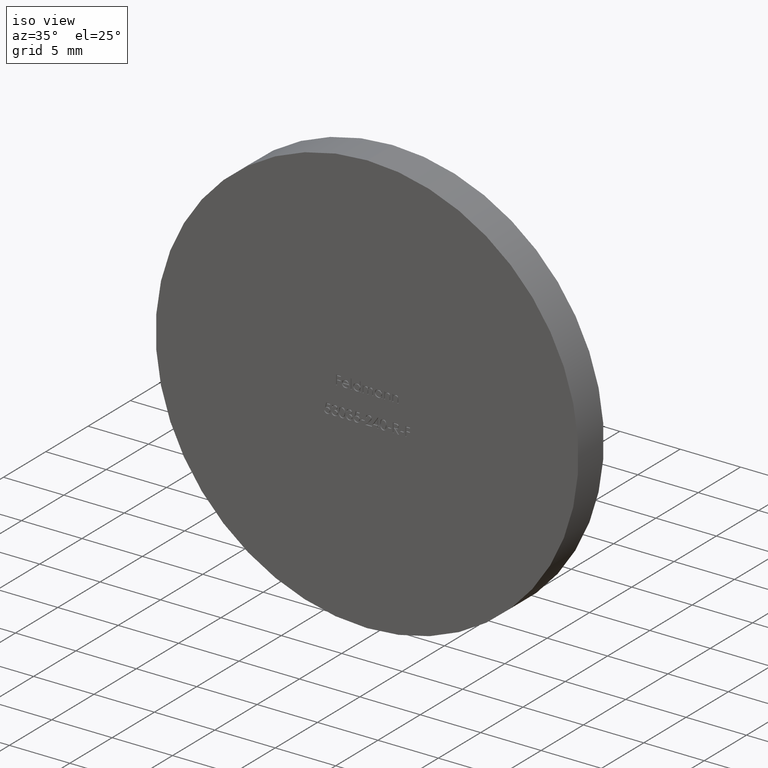
[diagram: clean part render]
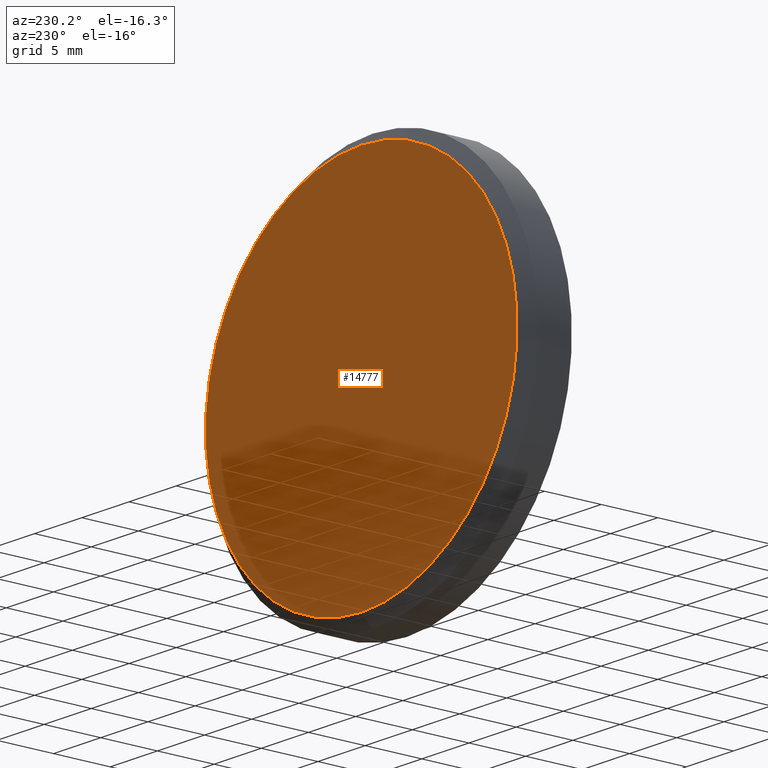
[diagram: tour spotlight — one face highlighted and labeled with its STEP entity id]
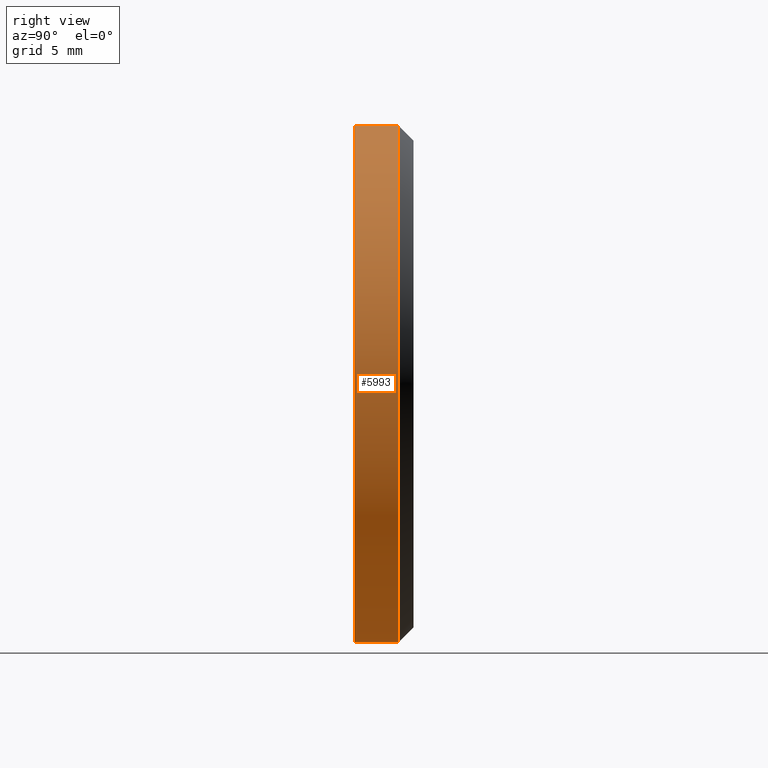
[diagram: tour spotlight — one face highlighted and labeled with its STEP entity id]
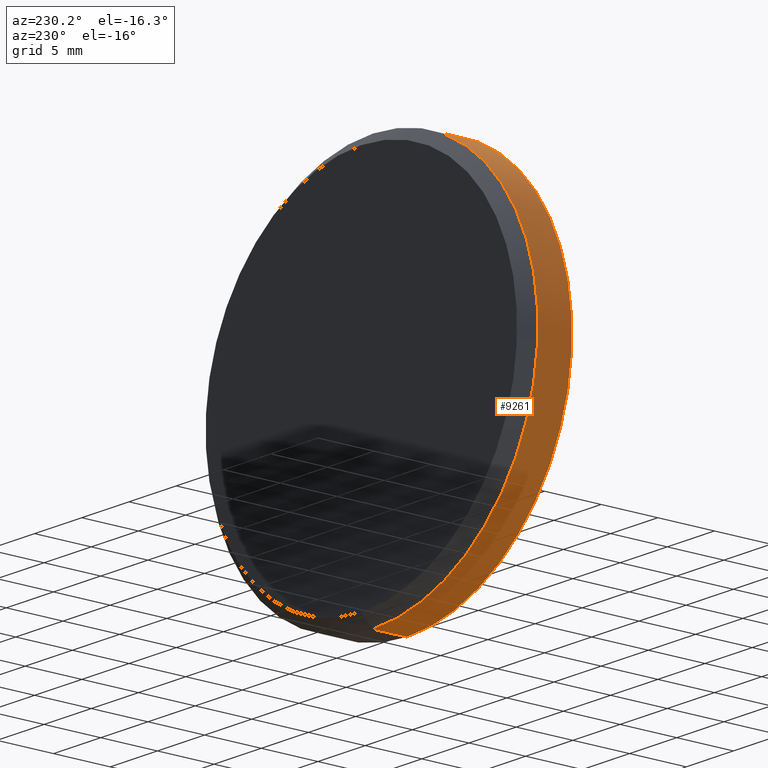
[diagram: tour spotlight — one face highlighted and labeled with its STEP entity id]
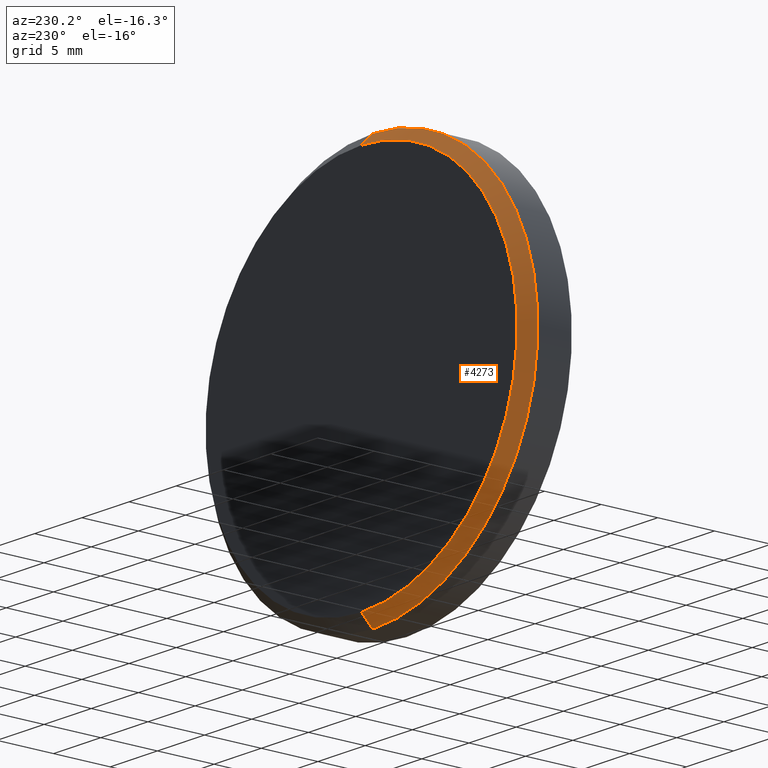
[diagram: tour spotlight — one face highlighted and labeled with its STEP entity id]
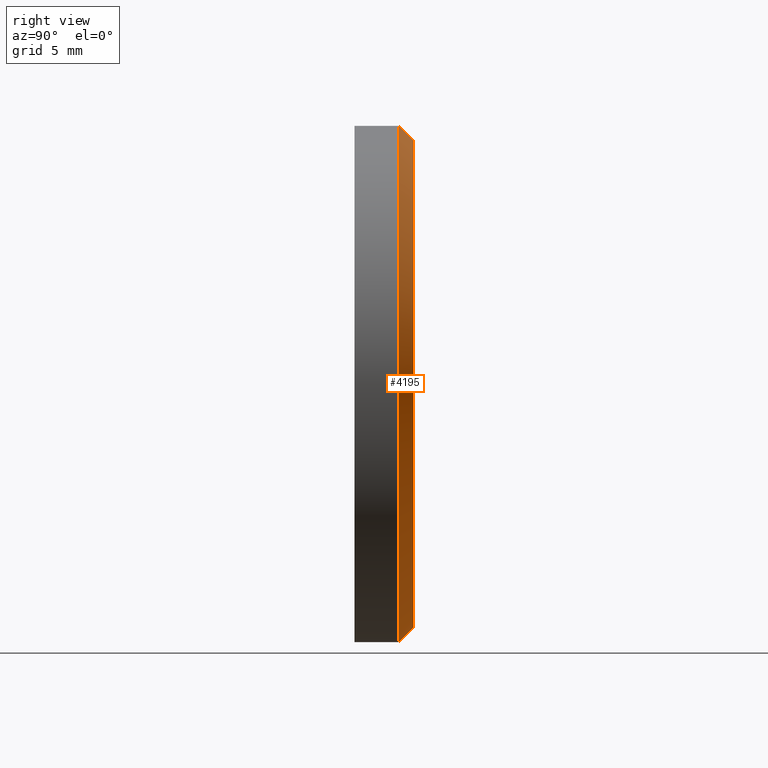
[diagram: tour spotlight — one face highlighted and labeled with its STEP entity id]
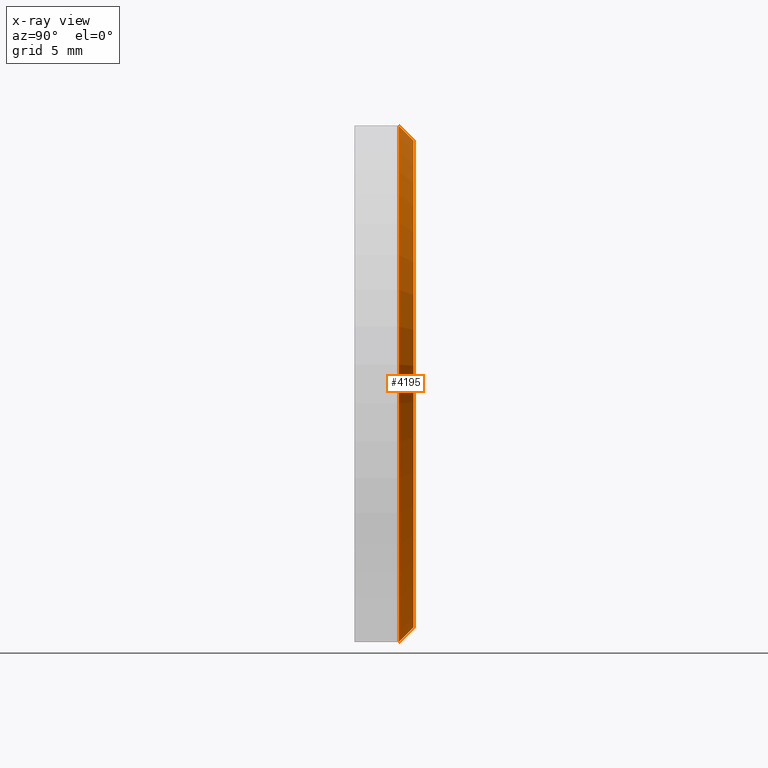
[diagram: x-ray of the same camera — body ghosted, this tour face saturated]
A machine part: a face-by-face anatomy tour. The part has 279 B-rep faces; the first image is the clean iso view, then the 5 largest visible faces are spotlighted one at a time (largest first), each with its STEP entity span.

Face 1 — auxiliary view, entity #14777. In plain terms, the highlighted planar face has unit normal (0, 1, 0).
Definition (entity closure, byte-faithful):
#495 = EDGE_CURVE ( 'NONE', #5404, #735, #3005, .T. ) ;
#735 = VERTEX_POINT ( 'NONE', #1811 ) ;
#972 = ORIENTED_EDGE ( 'NONE', *, *, #495, .T. ) ;
#1275 = DIRECTION ( 'NONE',  ( 0.000000000000000000, 0.000000000000000000, 1.000000000000000000 ) ) ;
#1706 = DIRECTION ( 'NONE',  ( 0.000000000000000000, 1.000000000000000000, 0.000000000000000000 ) ) ;
#1811 = CARTESIAN_POINT ( 'NONE',  ( 0.000000000000000000, 2.000000000000000000, -16.50000000000000000 ) ) ;
#2479 = DIRECTION ( 'NONE',  ( 0.000000000000000000, 1.000000000000000000, 0.000000000000000000 ) ) ;
#2843 = CARTESIAN_POINT ( 'NONE',  ( 0.000000000000000000, 2.000000000000000000, 0.000000000000000000 ) ) ;
#3005 = CIRCLE ( 'NONE', #11826, 16.50000000000000000 ) ;
#4680 = CARTESIAN_POINT ( 'NONE',  ( 2.081899558550500674E-15, 2.000000000000000000, 16.50000000000000000 ) ) ;
#4746 = CARTESIAN_POINT ( 'NONE',  ( 0.000000000000000000, 2.000000000000000000, 0.000000000000000000 ) ) ;
#5276 = PLANE ( 'NONE',  #13328 ) ;
#5404 = VERTEX_POINT ( 'NONE', #4680 ) ;
#6340 = DIRECTION ( 'NONE',  ( 0.000000000000000000, -0.000000000000000000, 1.000000000000000000 ) ) ;
#6895 = ORIENTED_EDGE ( 'NONE', *, *, #8542, .T. ) ;
#8542 = EDGE_CURVE ( 'NONE', #735, #5404, #11067, .T. ) ;
#10059 = FACE_OUTER_BOUND ( 'NONE', #15172, .T. ) ;
#10814 = DIRECTION ( 'NONE',  ( 0.000000000000000000, 1.000000000000000000, 0.000000000000000000 ) ) ;
#11067 = CIRCLE ( 'NONE', #14968, 16.50000000000000000 ) ;
#11826 = AXIS2_PLACEMENT_3D ( 'NONE', #4746, #10814, #12008 ) ;
#11964 = CARTESIAN_POINT ( 'NONE',  ( 0.000000000000000000, 2.000000000000000000, 0.000000000000000000 ) ) ;
#12008 = DIRECTION ( 'NONE',  ( 0.000000000000000000, 0.000000000000000000, 1.000000000000000000 ) ) ;
#13328 = AXIS2_PLACEMENT_3D ( 'NONE', #2843, #1706, #6340 ) ;
#14777 = ADVANCED_FACE ( 'NONE', ( #10059 ), #5276, .T. ) ;
#14968 = AXIS2_PLACEMENT_3D ( 'NONE', #11964, #2479, #1275 ) ;
#15172 = EDGE_LOOP ( 'NONE', ( #6895, #972 ) ) ;

Face 2 — right view, entity #5993. In plain terms, the highlighted cylindrical surface (partial cylindrical patch) has radius 17.5 mm, axis along (-0, -1, -0).
Definition (entity closure, byte-faithful):
#82 = AXIS2_PLACEMENT_3D ( 'NONE', #1902, #11392, #4336 ) ;
#509 = CARTESIAN_POINT ( 'NONE',  ( 0.000000000000000000, 2.000000000000000000, 0.000000000000000000 ) ) ;
#630 = EDGE_CURVE ( 'NONE', #2962, #12953, #15239, .T. ) ;
#1118 = ORIENTED_EDGE ( 'NONE', *, *, #10321, .F. ) ;
#1902 = CARTESIAN_POINT ( 'NONE',  ( 0.000000000000000000, -2.000000000000000000, 0.000000000000000000 ) ) ;
#2425 = VERTEX_POINT ( 'NONE', #7342 ) ;
#2678 = EDGE_LOOP ( 'NONE', ( #9169, #14987, #2803, #1118 ) ) ;
#2803 = ORIENTED_EDGE ( 'NONE', *, *, #8751, .T. ) ;
#2858 = VECTOR ( 'NONE', #8539, 1000.000000000000000 ) ;
#2962 = VERTEX_POINT ( 'NONE', #4221 ) ;
#3249 = CIRCLE ( 'NONE', #82, 17.50000000000000355 ) ;
#4221 = CARTESIAN_POINT ( 'NONE',  ( 2.143131898507868643E-15, 0.9999999999999922284, 17.50000000000000355 ) ) ;
#4241 = CARTESIAN_POINT ( 'NONE',  ( 0.000000000000000000, 0.9999999999999922284, 0.000000000000000000 ) ) ;
#4300 = DIRECTION ( 'NONE',  ( 0.000000000000000000, -1.000000000000000000, 0.000000000000000000 ) ) ;
#4336 = DIRECTION ( 'NONE',  ( 0.000000000000000000, 0.000000000000000000, 1.000000000000000000 ) ) ;
#4945 = AXIS2_PLACEMENT_3D ( 'NONE', #509, #5227, #11198 ) ;
#4947 = CARTESIAN_POINT ( 'NONE',  ( 0.000000000000000000, 2.000000000000000000, -17.50000000000000355 ) ) ;
#5227 = DIRECTION ( 'NONE',  ( -0.000000000000000000, -1.000000000000000000, -0.000000000000000000 ) ) ;
#5407 = CIRCLE ( 'NONE', #10147, 17.50000000000000355 ) ;
#5454 = VERTEX_POINT ( 'NONE', #5928 ) ;
#5928 = CARTESIAN_POINT ( 'NONE',  ( 0.000000000000000000, -2.000000000000000000, -17.50000000000000355 ) ) ;
#5993 = ADVANCED_FACE ( 'NONE', ( #7220 ), #14237, .T. ) ;
#7220 = FACE_OUTER_BOUND ( 'NONE', #2678, .T. ) ;
#7342 = CARTESIAN_POINT ( 'NONE',  ( 0.000000000000000000, 0.9999999999999922284, -17.50000000000000355 ) ) ;
#8539 = DIRECTION ( 'NONE',  ( -0.000000000000000000, -1.000000000000000000, -0.000000000000000000 ) ) ;
#8751 = EDGE_CURVE ( 'NONE', #12953, #5454, #3249, .T. ) ;
#8766 = DIRECTION ( 'NONE',  ( -0.000000000000000000, -1.000000000000000000, -0.000000000000000000 ) ) ;
#9169 = ORIENTED_EDGE ( 'NONE', *, *, #14526, .T. ) ;
#9188 = LINE ( 'NONE', #4947, #2858 ) ;
#9363 = CARTESIAN_POINT ( 'NONE',  ( 2.143131898507868643E-15, -2.000000000000000000, 17.50000000000000355 ) ) ;
#9708 = VECTOR ( 'NONE', #8766, 1000.000000000000000 ) ;
#10147 = AXIS2_PLACEMENT_3D ( 'NONE', #4241, #4300, #13632 ) ;
#10321 = EDGE_CURVE ( 'NONE', #2425, #5454, #9188, .T. ) ;
#11198 = DIRECTION ( 'NONE',  ( 0.000000000000000000, 0.000000000000000000, -1.000000000000000000 ) ) ;
#11392 = DIRECTION ( 'NONE',  ( 0.000000000000000000, 1.000000000000000000, 0.000000000000000000 ) ) ;
#12378 = CARTESIAN_POINT ( 'NONE',  ( 2.143131898507868643E-15, 2.000000000000000000, 17.50000000000000355 ) ) ;
#12953 = VERTEX_POINT ( 'NONE', #9363 ) ;
#13632 = DIRECTION ( 'NONE',  ( 0.000000000000000000, 0.000000000000000000, 1.000000000000000000 ) ) ;
#14237 = CYLINDRICAL_SURFACE ( 'NONE', #4945, 17.50000000000000355 ) ;
#14526 = EDGE_CURVE ( 'NONE', #2425, #2962, #5407, .T. ) ;
#14987 = ORIENTED_EDGE ( 'NONE', *, *, #630, .T. ) ;
#15239 = LINE ( 'NONE', #12378, #9708 ) ;

Face 3 — auxiliary view, entity #9261. In plain terms, the highlighted cylindrical surface (partial cylindrical patch) has radius 17.5 mm, axis along (-0, -1, -0).
Definition (entity closure, byte-faithful):
#630 = EDGE_CURVE ( 'NONE', #2962, #12953, #15239, .T. ) ;
#648 = CARTESIAN_POINT ( 'NONE',  ( 0.000000000000000000, 2.000000000000000000, 0.000000000000000000 ) ) ;
#678 = AXIS2_PLACEMENT_3D ( 'NONE', #648, #13805, #6731 ) ;
#1395 = CARTESIAN_POINT ( 'NONE',  ( 0.000000000000000000, 0.9999999999999922284, 0.000000000000000000 ) ) ;
#2425 = VERTEX_POINT ( 'NONE', #7342 ) ;
#2858 = VECTOR ( 'NONE', #8539, 1000.000000000000000 ) ;
#2879 = AXIS2_PLACEMENT_3D ( 'NONE', #3625, #4885, #11873 ) ;
#2885 = CYLINDRICAL_SURFACE ( 'NONE', #678, 17.50000000000000355 ) ;
#2962 = VERTEX_POINT ( 'NONE', #4221 ) ;
#3514 = ORIENTED_EDGE ( 'NONE', *, *, #630, .F. ) ;
#3625 = CARTESIAN_POINT ( 'NONE',  ( 0.000000000000000000, -2.000000000000000000, 0.000000000000000000 ) ) ;
#4107 = CIRCLE ( 'NONE', #2879, 17.50000000000000355 ) ;
#4148 = ORIENTED_EDGE ( 'NONE', *, *, #10321, .T. ) ;
#4221 = CARTESIAN_POINT ( 'NONE',  ( 2.143131898507868643E-15, 0.9999999999999922284, 17.50000000000000355 ) ) ;
#4885 = DIRECTION ( 'NONE',  ( 0.000000000000000000, 1.000000000000000000, 0.000000000000000000 ) ) ;
#4947 = CARTESIAN_POINT ( 'NONE',  ( 0.000000000000000000, 2.000000000000000000, -17.50000000000000355 ) ) ;
#5014 = DIRECTION ( 'NONE',  ( 0.000000000000000000, -1.000000000000000000, 0.000000000000000000 ) ) ;
#5454 = VERTEX_POINT ( 'NONE', #5928 ) ;
#5928 = CARTESIAN_POINT ( 'NONE',  ( 0.000000000000000000, -2.000000000000000000, -17.50000000000000355 ) ) ;
#6731 = DIRECTION ( 'NONE',  ( 0.000000000000000000, 0.000000000000000000, -1.000000000000000000 ) ) ;
#7342 = CARTESIAN_POINT ( 'NONE',  ( 0.000000000000000000, 0.9999999999999922284, -17.50000000000000355 ) ) ;
#7384 = CIRCLE ( 'NONE', #9734, 17.50000000000000355 ) ;
#8168 = EDGE_LOOP ( 'NONE', ( #3514, #9655, #4148, #8789 ) ) ;
#8539 = DIRECTION ( 'NONE',  ( -0.000000000000000000, -1.000000000000000000, -0.000000000000000000 ) ) ;
#8570 = EDGE_CURVE ( 'NONE', #2962, #2425, #7384, .T. ) ;
#8766 = DIRECTION ( 'NONE',  ( -0.000000000000000000, -1.000000000000000000, -0.000000000000000000 ) ) ;
#8789 = ORIENTED_EDGE ( 'NONE', *, *, #13018, .T. ) ;
#9188 = LINE ( 'NONE', #4947, #2858 ) ;
#9261 = ADVANCED_FACE ( 'NONE', ( #9766 ), #2885, .T. ) ;
#9363 = CARTESIAN_POINT ( 'NONE',  ( 2.143131898507868643E-15, -2.000000000000000000, 17.50000000000000355 ) ) ;
#9655 = ORIENTED_EDGE ( 'NONE', *, *, #8570, .T. ) ;
#9708 = VECTOR ( 'NONE', #8766, 1000.000000000000000 ) ;
#9734 = AXIS2_PLACEMENT_3D ( 'NONE', #1395, #5014, #12012 ) ;
#9766 = FACE_OUTER_BOUND ( 'NONE', #8168, .T. ) ;
#10321 = EDGE_CURVE ( 'NONE', #2425, #5454, #9188, .T. ) ;
#11873 = DIRECTION ( 'NONE',  ( 0.000000000000000000, 0.000000000000000000, 1.000000000000000000 ) ) ;
#12012 = DIRECTION ( 'NONE',  ( 0.000000000000000000, 0.000000000000000000, 1.000000000000000000 ) ) ;
#12378 = CARTESIAN_POINT ( 'NONE',  ( 2.143131898507868643E-15, 2.000000000000000000, 17.50000000000000355 ) ) ;
#12953 = VERTEX_POINT ( 'NONE', #9363 ) ;
#13018 = EDGE_CURVE ( 'NONE', #5454, #12953, #4107, .T. ) ;
#13805 = DIRECTION ( 'NONE',  ( -0.000000000000000000, -1.000000000000000000, -0.000000000000000000 ) ) ;
#15239 = LINE ( 'NONE', #12378, #9708 ) ;

Face 4 — auxiliary view, entity #4273. In plain terms, the highlighted conical surface has half-angle 45 deg.
Definition (entity closure, byte-faithful):
#214 = VECTOR ( 'NONE', #1566, 1000.000000000000000 ) ;
#543 = CONICAL_SURFACE ( 'NONE', #6943, 16.50000000000000000, 0.7853981633974466137 ) ;
#735 = VERTEX_POINT ( 'NONE', #1811 ) ;
#1160 = ORIENTED_EDGE ( 'NONE', *, *, #8570, .F. ) ;
#1275 = DIRECTION ( 'NONE',  ( 0.000000000000000000, 0.000000000000000000, 1.000000000000000000 ) ) ;
#1395 = CARTESIAN_POINT ( 'NONE',  ( 0.000000000000000000, 0.9999999999999922284, 0.000000000000000000 ) ) ;
#1566 = DIRECTION ( 'NONE',  ( 0.000000000000000000, -0.7071067811865487940, -0.7071067811865463515 ) ) ;
#1811 = CARTESIAN_POINT ( 'NONE',  ( 0.000000000000000000, 2.000000000000000000, -16.50000000000000000 ) ) ;
#1959 = CARTESIAN_POINT ( 'NONE',  ( 2.020667218593133100E-15, 2.000000000000000000, 16.50000000000000000 ) ) ;
#2392 = VECTOR ( 'NONE', #4229, 1000.000000000000000 ) ;
#2425 = VERTEX_POINT ( 'NONE', #7342 ) ;
#2479 = DIRECTION ( 'NONE',  ( 0.000000000000000000, 1.000000000000000000, 0.000000000000000000 ) ) ;
#2962 = VERTEX_POINT ( 'NONE', #4221 ) ;
#3930 = CARTESIAN_POINT ( 'NONE',  ( 0.000000000000000000, 2.000000000000000000, -16.50000000000000000 ) ) ;
#4221 = CARTESIAN_POINT ( 'NONE',  ( 2.143131898507868643E-15, 0.9999999999999922284, 17.50000000000000355 ) ) ;
#4229 = DIRECTION ( 'NONE',  ( 8.659560562354918067E-17, -0.7071067811865487940, 0.7071067811865463515 ) ) ;
#4273 = ADVANCED_FACE ( 'NONE', ( #13153 ), #543, .T. ) ;
#4680 = CARTESIAN_POINT ( 'NONE',  ( 2.081899558550500674E-15, 2.000000000000000000, 16.50000000000000000 ) ) ;
#4845 = EDGE_CURVE ( 'NONE', #5404, #2962, #8729, .T. ) ;
#5014 = DIRECTION ( 'NONE',  ( 0.000000000000000000, -1.000000000000000000, 0.000000000000000000 ) ) ;
#5404 = VERTEX_POINT ( 'NONE', #4680 ) ;
#6509 = ORIENTED_EDGE ( 'NONE', *, *, #4845, .F. ) ;
#6554 = LINE ( 'NONE', #3930, #214 ) ;
#6829 = DIRECTION ( 'NONE',  ( 0.000000000000000000, -1.000000000000000000, 0.000000000000000000 ) ) ;
#6943 = AXIS2_PLACEMENT_3D ( 'NONE', #8029, #6829, #15101 ) ;
#7274 = ORIENTED_EDGE ( 'NONE', *, *, #8542, .F. ) ;
#7342 = CARTESIAN_POINT ( 'NONE',  ( 0.000000000000000000, 0.9999999999999922284, -17.50000000000000355 ) ) ;
#7384 = CIRCLE ( 'NONE', #9734, 17.50000000000000355 ) ;
#8029 = CARTESIAN_POINT ( 'NONE',  ( 0.000000000000000000, 2.000000000000000000, 0.000000000000000000 ) ) ;
#8542 = EDGE_CURVE ( 'NONE', #735, #5404, #11067, .T. ) ;
#8570 = EDGE_CURVE ( 'NONE', #2962, #2425, #7384, .T. ) ;
#8729 = LINE ( 'NONE', #1959, #2392 ) ;
#8741 = EDGE_LOOP ( 'NONE', ( #6509, #7274, #14541, #1160 ) ) ;
#9734 = AXIS2_PLACEMENT_3D ( 'NONE', #1395, #5014, #12012 ) ;
#11067 = CIRCLE ( 'NONE', #14968, 16.50000000000000000 ) ;
#11964 = CARTESIAN_POINT ( 'NONE',  ( 0.000000000000000000, 2.000000000000000000, 0.000000000000000000 ) ) ;
#12012 = DIRECTION ( 'NONE',  ( 0.000000000000000000, 0.000000000000000000, 1.000000000000000000 ) ) ;
#13153 = FACE_OUTER_BOUND ( 'NONE', #8741, .T. ) ;
#14541 = ORIENTED_EDGE ( 'NONE', *, *, #14734, .T. ) ;
#14734 = EDGE_CURVE ( 'NONE', #735, #2425, #6554, .T. ) ;
#14968 = AXIS2_PLACEMENT_3D ( 'NONE', #11964, #2479, #1275 ) ;
#15101 = DIRECTION ( 'NONE',  ( 0.000000000000000000, 0.000000000000000000, -1.000000000000000000 ) ) ;

Face 5 — right view, entity #4195. An x-ray twin of the same camera follows (body ghosted, this face saturated) — the face is partly hidden behind the body. In plain terms, the highlighted conical surface has half-angle 45 deg.
Definition (entity closure, byte-faithful):
#214 = VECTOR ( 'NONE', #1566, 1000.000000000000000 ) ;
#495 = EDGE_CURVE ( 'NONE', #5404, #735, #3005, .T. ) ;
#735 = VERTEX_POINT ( 'NONE', #1811 ) ;
#1467 = CONICAL_SURFACE ( 'NONE', #5926, 16.50000000000000000, 0.7853981633974466137 ) ;
#1566 = DIRECTION ( 'NONE',  ( 0.000000000000000000, -0.7071067811865487940, -0.7071067811865463515 ) ) ;
#1788 = DIRECTION ( 'NONE',  ( 0.000000000000000000, 0.000000000000000000, -1.000000000000000000 ) ) ;
#1811 = CARTESIAN_POINT ( 'NONE',  ( 0.000000000000000000, 2.000000000000000000, -16.50000000000000000 ) ) ;
#1959 = CARTESIAN_POINT ( 'NONE',  ( 2.020667218593133100E-15, 2.000000000000000000, 16.50000000000000000 ) ) ;
#2392 = VECTOR ( 'NONE', #4229, 1000.000000000000000 ) ;
#2425 = VERTEX_POINT ( 'NONE', #7342 ) ;
#2919 = DIRECTION ( 'NONE',  ( 0.000000000000000000, -1.000000000000000000, 0.000000000000000000 ) ) ;
#2962 = VERTEX_POINT ( 'NONE', #4221 ) ;
#3005 = CIRCLE ( 'NONE', #11826, 16.50000000000000000 ) ;
#3930 = CARTESIAN_POINT ( 'NONE',  ( 0.000000000000000000, 2.000000000000000000, -16.50000000000000000 ) ) ;
#4195 = ADVANCED_FACE ( 'NONE', ( #11483 ), #1467, .T. ) ;
#4221 = CARTESIAN_POINT ( 'NONE',  ( 2.143131898507868643E-15, 0.9999999999999922284, 17.50000000000000355 ) ) ;
#4229 = DIRECTION ( 'NONE',  ( 8.659560562354918067E-17, -0.7071067811865487940, 0.7071067811865463515 ) ) ;
#4241 = CARTESIAN_POINT ( 'NONE',  ( 0.000000000000000000, 0.9999999999999922284, 0.000000000000000000 ) ) ;
#4300 = DIRECTION ( 'NONE',  ( 0.000000000000000000, -1.000000000000000000, 0.000000000000000000 ) ) ;
#4680 = CARTESIAN_POINT ( 'NONE',  ( 2.081899558550500674E-15, 2.000000000000000000, 16.50000000000000000 ) ) ;
#4746 = CARTESIAN_POINT ( 'NONE',  ( 0.000000000000000000, 2.000000000000000000, 0.000000000000000000 ) ) ;
#4845 = EDGE_CURVE ( 'NONE', #5404, #2962, #8729, .T. ) ;
#4976 = ORIENTED_EDGE ( 'NONE', *, *, #4845, .T. ) ;
#5265 = CARTESIAN_POINT ( 'NONE',  ( 0.000000000000000000, 2.000000000000000000, 0.000000000000000000 ) ) ;
#5404 = VERTEX_POINT ( 'NONE', #4680 ) ;
#5407 = CIRCLE ( 'NONE', #10147, 17.50000000000000355 ) ;
#5926 = AXIS2_PLACEMENT_3D ( 'NONE', #5265, #2919, #1788 ) ;
#6554 = LINE ( 'NONE', #3930, #214 ) ;
#7342 = CARTESIAN_POINT ( 'NONE',  ( 0.000000000000000000, 0.9999999999999922284, -17.50000000000000355 ) ) ;
#8729 = LINE ( 'NONE', #1959, #2392 ) ;
#8979 = EDGE_LOOP ( 'NONE', ( #12834, #4976, #9484, #10357 ) ) ;
#9484 = ORIENTED_EDGE ( 'NONE', *, *, #14526, .F. ) ;
#10147 = AXIS2_PLACEMENT_3D ( 'NONE', #4241, #4300, #13632 ) ;
#10357 = ORIENTED_EDGE ( 'NONE', *, *, #14734, .F. ) ;
#10814 = DIRECTION ( 'NONE',  ( 0.000000000000000000, 1.000000000000000000, 0.000000000000000000 ) ) ;
#11483 = FACE_OUTER_BOUND ( 'NONE', #8979, .T. ) ;
#11826 = AXIS2_PLACEMENT_3D ( 'NONE', #4746, #10814, #12008 ) ;
#12008 = DIRECTION ( 'NONE',  ( 0.000000000000000000, 0.000000000000000000, 1.000000000000000000 ) ) ;
#12834 = ORIENTED_EDGE ( 'NONE', *, *, #495, .F. ) ;
#13632 = DIRECTION ( 'NONE',  ( 0.000000000000000000, 0.000000000000000000, 1.000000000000000000 ) ) ;
#14526 = EDGE_CURVE ( 'NONE', #2425, #2962, #5407, .T. ) ;
#14734 = EDGE_CURVE ( 'NONE', #735, #2425, #6554, .T. ) ;